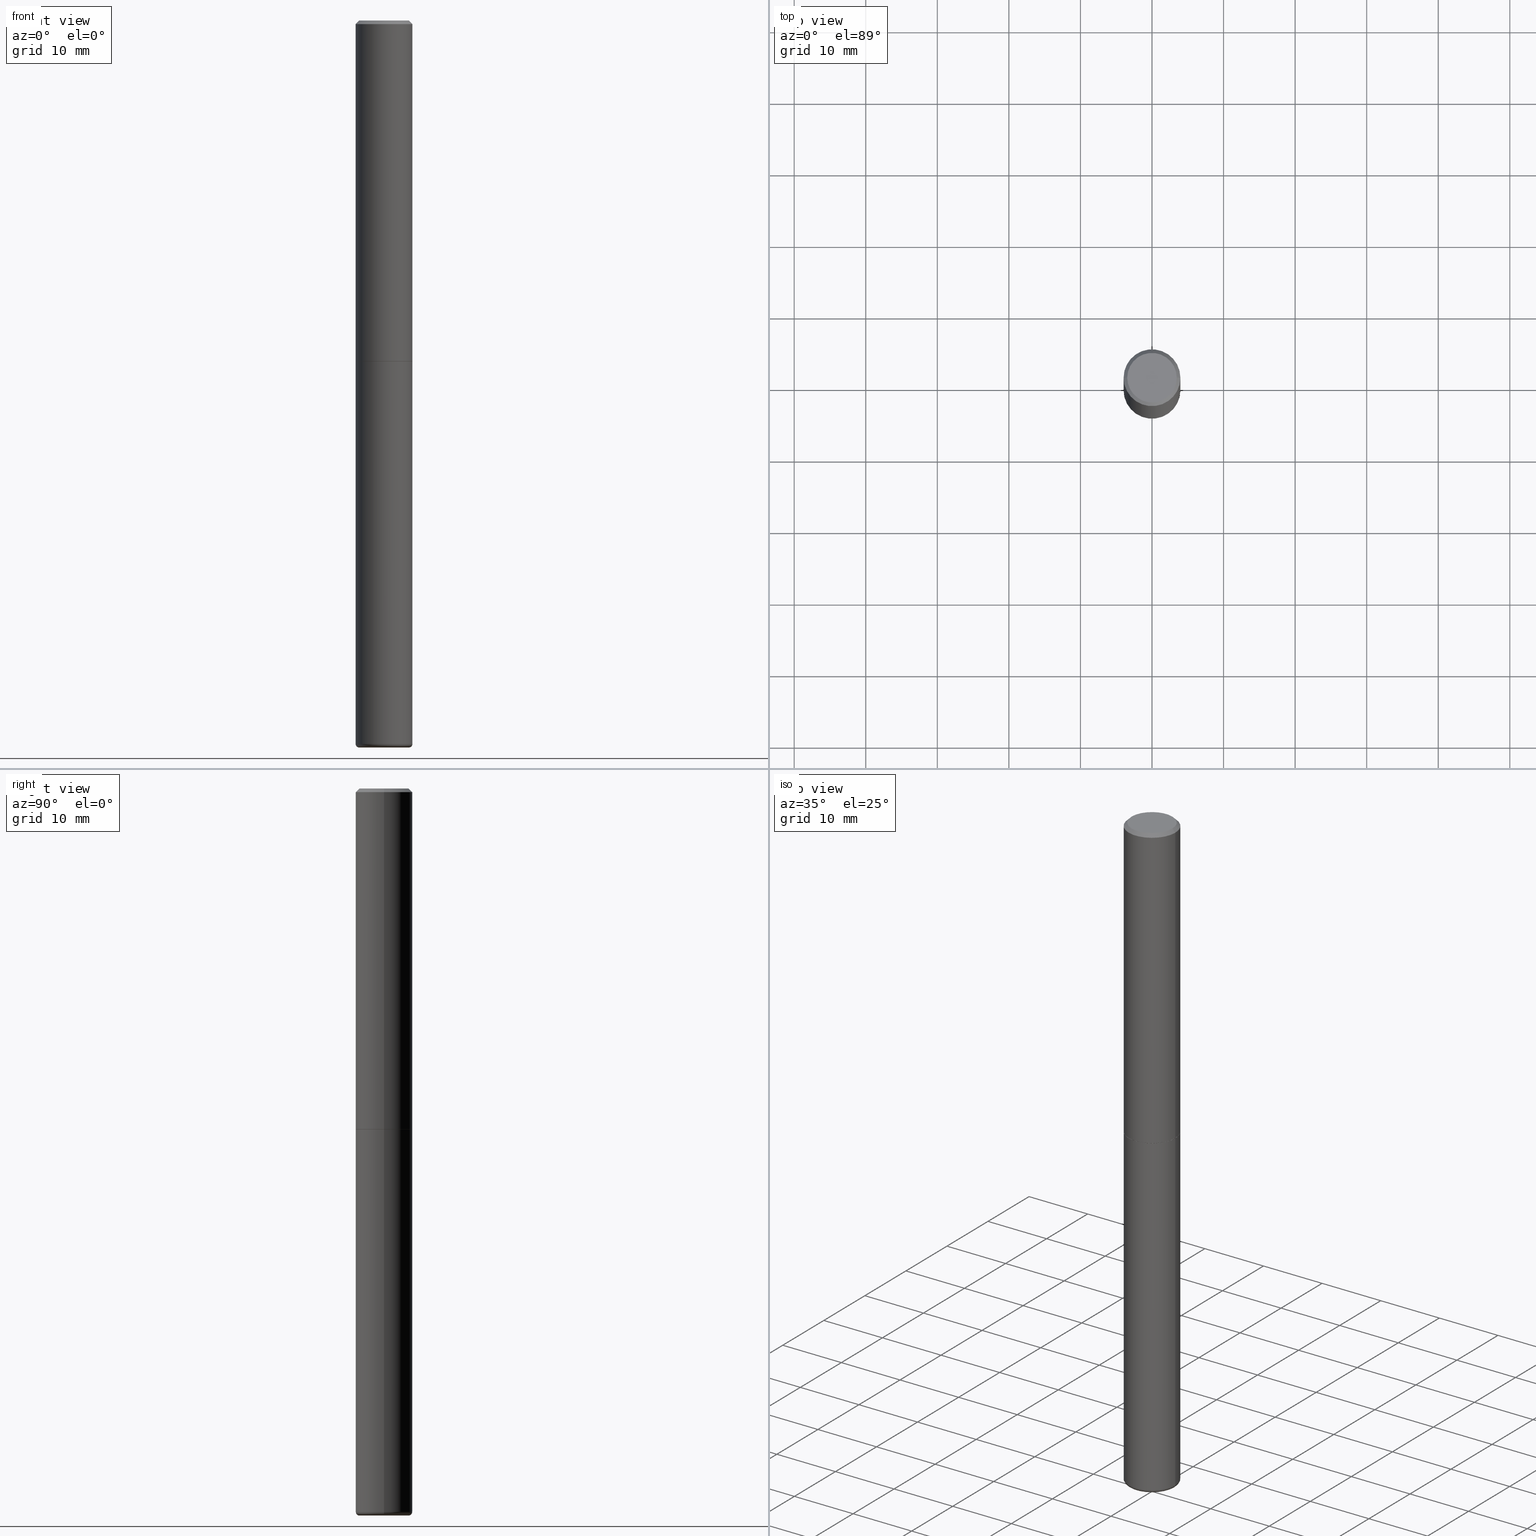
[diagram: canonical four-view strip — front | top / right | iso, engineering-drawing reading convention]
A machine part, canonical four-view strip (front | top / right | iso — engineering-drawing reading convention). The complete STEP part file that produces these views, byte-faithful:
ISO-10303-21;
HEADER;
FILE_DESCRIPTION (( 'STEP AP203' ),
    '1' );
FILE_NAME ('33460.STEP',
    '2022-11-02T20:12:44',
    ( '' ),
    ( '' ),
    'SwSTEP 2.0',
    'SolidWorks 2022',
    '' );
FILE_SCHEMA (( 'CONFIG_CONTROL_DESIGN' ));
ENDSEC;

DATA;
#1 = ORIENTED_EDGE ( 'NONE', *, *, #339, .T. ) ;
#2 = EDGE_CURVE ( 'NONE', #200, #234, #281, .T. ) ;
#3 = CALENDAR_DATE ( 2022, 2, 11 ) ;
#4 = ORIENTED_EDGE ( 'NONE', *, *, #436, .T. ) ;
#5 = CARTESIAN_POINT ( 'NONE',  ( 4.585254011597131679E-29, -6.546527510330899496E-15, -1.875000000000000444 ) ) ;
#6 = ORIENTED_EDGE ( 'NONE', *, *, #138, .T. ) ;
#7 = DIRECTION ( 'NONE',  ( -2.445468806185136597E-29, 3.491481338843145583E-15, 1.000000000000000000 ) ) ;
#8 = DIRECTION ( 'NONE',  ( 1.000000000000000000, -6.982962677686262766E-15, 4.883557194083111780E-29 ) ) ;
#9 = EDGE_LOOP ( 'NONE', ( #261, #370, #79 ) ) ;
#10 = CC_DESIGN_DATE_AND_TIME_ASSIGNMENT ( #159, #49, ( #280 ) ) ;
#11 = CIRCLE ( 'NONE', #388, 0.1360754692900327800 ) ;
#12 = ORIENTED_EDGE ( 'NONE', *, *, #64, .T. ) ;
#13 = DIRECTION ( 'NONE',  ( 1.000000000000000000, -6.982962677686269077E-15, 0.000000000000000000 ) ) ;
#14 = DIRECTION ( 'NONE',  ( 0.000000000000000000, 0.000000000000000000, 1.000000000000000000 ) ) ;
#15 = CC_DESIGN_PERSON_AND_ORGANIZATION_ASSIGNMENT ( #221, #107, ( #381 ) ) ;
#16 = UNCERTAINTY_MEASURE_WITH_UNIT (LENGTH_MEASURE( 1.000000000000000082E-05 ), #285, 'distance_accuracy_value', 'NONE');
#17 = FACE_OUTER_BOUND ( 'NONE', #345, .T. ) ;
#18 = DIRECTION ( 'NONE',  ( -0.9993908270190957621, 6.856857904024562781E-15, -0.03489949670249930386 ) ) ;
#19 = CIRCLE ( 'NONE', #227, 0.1552499999999999991 ) ;
#20 = DIRECTION ( 'NONE',  ( 1.000000000000000000, 0.000000000000000000, 0.000000000000000000 ) ) ;
#21 = COORDINATED_UNIVERSAL_TIME_OFFSET ( 5, 0, .BEHIND. ) ;
#22 = EDGE_CURVE ( 'NONE', #275, #45, #401, .T. ) ;
#23 = DIRECTION ( 'NONE',  ( -1.000000000000000000, 6.982962677686259611E-15, 0.000000000000000000 ) ) ;
#24 = PERSON_AND_ORGANIZATION_ROLE ( 'classification_officer' ) ;
#25 = DIRECTION ( 'NONE',  ( 1.000000000000000000, -6.982962677686292743E-15, 0.000000000000000000 ) ) ;
#26 = DIRECTION ( 'NONE',  ( 1.000000000000000000, -6.982962677686266711E-15, 4.876176775795935793E-29 ) ) ;
#27 = ADVANCED_BREP_SHAPE_REPRESENTATION ( '33460', ( #169, #185, #440 ), #189 ) ;
#28 = CARTESIAN_POINT ( 'NONE',  ( -0.1562500000000000000, -2.196209803259297437E-15, -1.874000000000000332 ) ) ;
#29 = CARTESIAN_POINT ( 'NONE',  ( 9.781519558921750224E-29, -1.396541755884454842E-14, -3.999854561293974431 ) ) ;
#30 = CARTESIAN_POINT ( 'NONE',  ( -0.1562499999999994726, 1.021258291611612128E-15, -0.02000000000000008021 ) ) ;
#31 = ORIENTED_EDGE ( 'NONE', *, *, #2, .F. ) ;
#32 = CIRCLE ( 'NONE', #483, 0.1562500000000000000 ) ;
#33 = DIRECTION ( 'NONE',  ( 7.105427357601001859E-15, 1.000000000000000000, -3.491481338843145583E-15 ) ) ;
#34 = DIRECTION ( 'NONE',  ( -2.445468806185136597E-29, 3.491481338843145583E-15, 1.000000000000000000 ) ) ;
#35 = ORIENTED_EDGE ( 'NONE', *, *, #187, .F. ) ;
#36 = COORDINATED_UNIVERSAL_TIME_OFFSET ( 5, 0, .BEHIND. ) ;
#37 = CARTESIAN_POINT ( 'NONE',  ( -0.1194098442900327905, -1.313158307281892239E-14, -3.999854561293974431 ) ) ;
#38 = ORIENTED_EDGE ( 'NONE', *, *, #328, .T. ) ;
#39 = CONICAL_SURFACE ( 'NONE', #136, 0.1552499999999999991, 0.7853981633974141952 ) ;
#40 = PERSON_AND_ORGANIZATION ( #85, #294 ) ;
#41 = CONICAL_SURFACE ( 'NONE', #211, 0.1552499999999999991, 0.7853981633974141952 ) ;
#42 = DIRECTION ( 'NONE',  ( -2.445468806185136877E-29, 3.491481338843145188E-15, 1.000000000000000000 ) ) ;
#43 = DIRECTION ( 'NONE',  ( 2.445468806185136597E-29, -3.491481338843145583E-15, -1.000000000000000000 ) ) ;
#44 = EDGE_LOOP ( 'NONE', ( #87, #412, #426, #202 ) ) ;
#45 = VERTEX_POINT ( 'NONE', #120 ) ;
#46 = FACE_OUTER_BOUND ( 'NONE', #125, .T. ) ;
#47 = ORIENTED_EDGE ( 'NONE', *, *, #307, .T. ) ;
#48 = VERTEX_POINT ( 'NONE', #319 ) ;
#49 = DATE_TIME_ROLE ( 'classification_date' ) ;
#50 = LOCAL_TIME ( 16, 12, 44.00000000000000000, #21 ) ;
#51 = CARTESIAN_POINT ( 'NONE',  ( 0.000000000000000000, 0.000000000000000000, 0.000000000000000000 ) ) ;
#52 = CALENDAR_DATE ( 2022, 2, 11 ) ;
#53 = ORIENTED_EDGE ( 'NONE', *, *, #80, .F. ) ;
#54 = ORIENTED_EDGE ( 'NONE', *, *, #333, .F. ) ;
#55 = APPROVAL ( #295, 'UNSPECIFIED' ) ;
#56 = DIRECTION ( 'NONE',  ( 1.000000000000000000, -6.982962677686265133E-15, 0.000000000000000000 ) ) ;
#57 = FACE_OUTER_BOUND ( 'NONE', #70, .T. ) ;
#58 = DIRECTION ( 'NONE',  ( 1.000000000000000000, -6.982962677686269077E-15, 0.000000000000000000 ) ) ;
#59 = CC_DESIGN_APPROVAL ( #253, ( #300 ) ) ;
#60 = CARTESIAN_POINT ( 'NONE',  ( 9.781875224740546387E-29, -1.396592535537258233E-14, -4.000000000000000000 ) ) ;
#61 = DIRECTION ( 'NONE',  ( 2.445468806185136597E-29, -3.491481338843145583E-15, -1.000000000000000000 ) ) ;
#62 = DIRECTION ( 'NONE',  ( -2.445468806185136597E-29, 3.491481338843145583E-15, 1.000000000000000000 ) ) ;
#63 = CONICAL_SURFACE ( 'NONE', #150, 0.1194098442900327905, 1.535889741755011695 ) ;
#64 = EDGE_CURVE ( 'NONE', #230, #450, #205, .T. ) ;
#65 = DIRECTION ( 'NONE',  ( 0.9993908270190957621, -6.978169709227536755E-15, -0.03489949670249930386 ) ) ;
#66 = DIRECTION ( 'NONE',  ( -2.445468806185136597E-29, 3.491481338843145583E-15, 1.000000000000000000 ) ) ;
#67 = EDGE_CURVE ( 'NONE', #419, #455, #242, .T. ) ;
#68 = CARTESIAN_POINT ( 'NONE',  ( 4.890937612370293302E-31, -6.982962677686318726E-17, -0.02000000000000008021 ) ) ;
#69 = CIRCLE ( 'NONE', #210, 0.1562500000000000000 ) ;
#70 = EDGE_LOOP ( 'NONE', ( #1, #112, #96, #344 ) ) ;
#71 = AXIS2_PLACEMENT_3D ( 'NONE', #95, #386, #8 ) ;
#72 = CARTESIAN_POINT ( 'NONE',  ( 9.732967710936019417E-29, -1.389609838749393704E-14, -3.980000761538716514 ) ) ;
#73 = DIRECTION ( 'NONE',  ( -2.445468806185136597E-29, 3.491481338843145583E-15, 1.000000000000000000 ) ) ;
#74 = ORIENTED_EDGE ( 'NONE', *, *, #457, .T. ) ;
#75 = CARTESIAN_POINT ( 'NONE',  ( 0.1194098442900327905, -1.478462855651052827E-14, -3.999854561293974431 ) ) ;
#76 = ORIENTED_EDGE ( 'NONE', *, *, #394, .T. ) ;
#77 = FACE_OUTER_BOUND ( 'NONE', #161, .T. ) ;
#78 = ORIENTED_EDGE ( 'NONE', *, *, #394, .F. ) ;
#79 = ORIENTED_EDGE ( 'NONE', *, *, #138, .F. ) ;
#80 = EDGE_CURVE ( 'NONE', #245, #456, #302, .T. ) ;
#81 = AXIS2_PLACEMENT_3D ( 'NONE', #128, #246, #56 ) ;
#82 = AXIS2_PLACEMENT_3D ( 'NONE', #392, #73, #290 ) ;
#83 = APPLICATION_CONTEXT ( 'configuration controlled 3d designs of mechanical parts and assemblies' ) ;
#84 = EDGE_LOOP ( 'NONE', ( #78, #378, #172, #86 ) ) ;
#85 = PERSON ( 'UNSPECIFIED', 'UNSPECIFIED', 'UNSPECIFIED', ('UNSPECIFIED'), ('UNSPECIFIED'), ('UNSPECIFIED') ) ;
#86 = ORIENTED_EDGE ( 'NONE', *, *, #156, .F. ) ;
#87 = ORIENTED_EDGE ( 'NONE', *, *, #80, .T. ) ;
#88 = VECTOR ( 'NONE', #130, 39.37007874015748143 ) ;
#89 = CC_DESIGN_SECURITY_CLASSIFICATION ( #280, ( #381 ) ) ;
#90 = EDGE_LOOP ( 'NONE', ( #198, #54 ) ) ;
#91 = ORIENTED_EDGE ( 'NONE', *, *, #105, .T. ) ;
#92 = DIRECTION ( 'NONE',  ( -2.445468806185136597E-29, 3.491481338843145583E-15, 1.000000000000000000 ) ) ;
#93 = EDGE_CURVE ( 'NONE', #234, #247, #279, .T. ) ;
#94 = FACE_OUTER_BOUND ( 'NONE', #151, .T. ) ;
#95 = CARTESIAN_POINT ( 'NONE',  ( 9.732967710936019417E-29, -1.389609838749393704E-14, -3.980000761538716514 ) ) ;
#96 = ORIENTED_EDGE ( 'NONE', *, *, #64, .F. ) ;
#97 = FACE_OUTER_BOUND ( 'NONE', #262, .T. ) ;
#98 = FACE_OUTER_BOUND ( 'NONE', #84, .T. ) ;
#99 = CIRCLE ( 'NONE', #434, 0.1194098442900327905 ) ;
#100 = DIRECTION ( 'NONE',  ( -0.9999619230641711987, 6.952228252019158991E-15, -0.008726535498377227182 ) ) ;
#101 =( NAMED_UNIT ( * ) PLANE_ANGLE_UNIT ( ) SI_UNIT ( $, .RADIAN. ) );
#102 = DATE_AND_TIME ( #132, #50 ) ;
#103 = LINE ( 'NONE', #470, #88 ) ;
#104 = APPROVAL_STATUS ( 'not_yet_approved' ) ;
#105 = EDGE_CURVE ( 'NONE', #245, #164, #254, .T. ) ;
#106 = DIRECTION ( 'NONE',  ( 1.000000000000000000, -6.982962677686269077E-15, 0.000000000000000000 ) ) ;
#107 = PERSON_AND_ORGANIZATION_ROLE ( 'design_supplier' ) ;
#108 = AXIS2_PLACEMENT_3D ( 'NONE', #474, #62, #26 ) ;
#109 = DIRECTION ( 'NONE',  ( -2.445468806185136597E-29, 3.491481338843145583E-15, 1.000000000000000000 ) ) ;
#110 = EDGE_LOOP ( 'NONE', ( #163, #190, #53 ) ) ;
#111 = CARTESIAN_POINT ( 'NONE',  ( 9.771322238536373205E-29, -1.395085848790416375E-14, -3.995684677646476946 ) ) ;
#112 = ORIENTED_EDGE ( 'NONE', *, *, #287, .T. ) ;
#113 = EDGE_CURVE ( 'NONE', #48, #164, #11, .T. ) ;
#114 = CARTESIAN_POINT ( 'NONE',  ( 0.1362499999999993994, -1.038262645562514180E-15, 6.957025900226667049E-30 ) ) ;
#115 = DIRECTION ( 'NONE',  ( 2.445468806185136597E-29, -3.491481338843145583E-15, -1.000000000000000000 ) ) ;
#116 = LOCAL_TIME ( 16, 12, 44.00000000000000000, #322 ) ;
#117 = DIRECTION ( 'NONE',  ( 1.000000000000000000, -6.982962677686269077E-15, 0.000000000000000000 ) ) ;
#118 = VECTOR ( 'NONE', #65, 39.37007874015748143 ) ;
#119 = AXIS2_PLACEMENT_3D ( 'NONE', #405, #479, #357 ) ;
#120 = CARTESIAN_POINT ( 'NONE',  ( 0.1562500000000000000, -1.498718630588241542E-14, -3.980000761538716514 ) ) ;
#121 = PLANE ( 'NONE',  #303 ) ;
#122 = FACE_OUTER_BOUND ( 'NONE', #463, .T. ) ;
#123 = AXIS2_PLACEMENT_3D ( 'NONE', #407, #395, #361 ) ;
#124 = MECHANICAL_CONTEXT ( 'NONE', #316, 'mechanical' ) ;
#125 = EDGE_LOOP ( 'NONE', ( #382, #6, #91, #308 ) ) ;
#126 = CARTESIAN_POINT ( 'NONE',  ( 0.1562499999999994726, -1.141782438928661161E-15, -0.02000000000000008021 ) ) ;
#127 = CARTESIAN_POINT ( 'NONE',  ( 9.732967710936019417E-29, -1.389609838749393704E-14, -3.980000761538716514 ) ) ;
#128 = CARTESIAN_POINT ( 'NONE',  ( 4.890937612370293302E-31, -6.982962677686318726E-17, -0.02000000000000008021 ) ) ;
#129 = CC_DESIGN_PERSON_AND_ORGANIZATION_ASSIGNMENT ( #458, #277, ( #148 ) ) ;
#130 = DIRECTION ( 'NONE',  ( -2.445468806185136877E-29, 3.491481338843145188E-15, 1.000000000000000000 ) ) ;
#131 = DIRECTION ( 'NONE',  ( -2.438088387897960049E-29, 3.491481338843145188E-15, 1.000000000000000000 ) ) ;
#132 = CALENDAR_DATE ( 2022, 2, 11 ) ;
#133 = DIRECTION ( 'NONE',  ( 2.438088387897960049E-29, -3.491481338843145188E-15, -1.000000000000000000 ) ) ;
#134 = LENGTH_MEASURE_WITH_UNIT ( LENGTH_MEASURE( 0.02539999999999999897 ), #397 );
#135 = FACE_OUTER_BOUND ( 'NONE', #415, .T. ) ;
#136 = AXIS2_PLACEMENT_3D ( 'NONE', #411, #179, #332 ) ;
#137 = DIRECTION ( 'NONE',  ( -2.445468806185136597E-29, 3.491481338843145583E-15, 1.000000000000000000 ) ) ;
#138 = EDGE_CURVE ( 'NONE', #456, #245, #99, .T. ) ;
#139 = DATE_AND_TIME ( #482, #304 ) ;
#140 = DIRECTION ( 'NONE',  ( -1.000000000000000000, 6.982962677686259611E-15, 0.000000000000000000 ) ) ;
#141 = CARTESIAN_POINT ( 'NONE',  ( 4.582808542790946637E-29, -6.543036028992055700E-15, -1.874000000000000332 ) ) ;
#142 = COORDINATED_UNIVERSAL_TIME_OFFSET ( 5, 0, .BEHIND. ) ;
#143 = CIRCLE ( 'NONE', #82, 0.1362499999999993994 ) ;
#144 = PERSON_AND_ORGANIZATION_ROLE ( 'creator' ) ;
#145 = LINE ( 'NONE', #263, #177 ) ;
#146 = EDGE_CURVE ( 'NONE', #164, #48, #311, .T. ) ;
#147 = DIRECTION ( 'NONE',  ( -2.445468806185136597E-29, 3.491481338843145583E-15, 1.000000000000000000 ) ) ;
#148 = PRODUCT ( '33460', '33460', '', ( #124 ) ) ;
#149 = ORIENTED_EDGE ( 'NONE', *, *, #22, .F. ) ;
#150 = AXIS2_PLACEMENT_3D ( 'NONE', #329, #398, #23 ) ;
#151 = EDGE_LOOP ( 'NONE', ( #241, #157, #38, #239 ) ) ;
#152 = ADVANCED_FACE ( 'NONE', ( #327 ), #63, .F. ) ;
#153 = CARTESIAN_POINT ( 'NONE',  ( 0.1552499999999999991, -7.630632466041692655E-15, -1.875000000000000444 ) ) ;
#154 = CARTESIAN_POINT ( 'NONE',  ( 9.781875224740546387E-29, -1.396592535537258233E-14, -4.000000000000000000 ) ) ;
#155 = ORIENTED_EDGE ( 'NONE', *, *, #436, .F. ) ;
#156 = EDGE_CURVE ( 'NONE', #455, #419, #354, .T. ) ;
#157 = ORIENTED_EDGE ( 'NONE', *, *, #22, .T. ) ;
#158 = AXIS2_PLACEMENT_3D ( 'NONE', #216, #33, #282 ) ;
#159 = DATE_AND_TIME ( #3, #178 ) ;
#160 = CONICAL_SURFACE ( 'NONE', #218, 0.1360754692900327800, 1.562069680534921678 ) ;
#161 = EDGE_LOOP ( 'NONE', ( #12, #305 ) ) ;
#162 = CC_DESIGN_PERSON_AND_ORGANIZATION_ASSIGNMENT ( #255, #144, ( #300 ) ) ;
#163 = ORIENTED_EDGE ( 'NONE', *, *, #387, .F. ) ;
#164 = VERTEX_POINT ( 'NONE', #184 ) ;
#165 = DIRECTION ( 'NONE',  ( 1.000000000000000000, -6.982962677686265922E-15, 4.876176775795935793E-29 ) ) ;
#166 = CARTESIAN_POINT ( 'NONE',  ( 4.585254011597131679E-29, -6.546527510330899496E-15, -1.875000000000000444 ) ) ;
#167 = VECTOR ( 'NONE', #404, 39.37007874015748143 ) ;
#168 = ADVANCED_FACE ( 'NONE', ( #17 ), #121, .F. ) ;
#169 = MANIFOLD_SOLID_BREP ( 'Body-Move/Copy2[1]', #330 ) ;
#170 = DIRECTION ( 'NONE',  ( 2.445468806185136597E-29, -3.491481338843145583E-15, -1.000000000000000000 ) ) ;
#171 = DIRECTION ( 'NONE',  ( -2.445468806185136597E-29, 3.491481338843145583E-15, 1.000000000000000000 ) ) ;
#172 = ORIENTED_EDGE ( 'NONE', *, *, #492, .T. ) ;
#173 = LINE ( 'NONE', #396, #371 ) ;
#174 = DIRECTION ( 'NONE',  ( -2.445468806185136597E-29, 3.491481338843145583E-15, 1.000000000000000000 ) ) ;
#175 = CARTESIAN_POINT ( 'NONE',  ( 9.781875224740546387E-29, -1.396592535537258233E-14, -4.000000000000000000 ) ) ;
#176 = CARTESIAN_POINT ( 'NONE',  ( 0.1562499999999997224, -1.091087918388477399E-15, 7.619026212181136364E-30 ) ) ;
#177 = VECTOR ( 'NONE', #410, 39.37007874015748143 ) ;
#178 = LOCAL_TIME ( 16, 12, 44.00000000000000000, #36 ) ;
#179 = DIRECTION ( 'NONE',  ( -2.445468806185136597E-29, 3.491481338843145583E-15, 1.000000000000000000 ) ) ;
#180 = DIRECTION ( 'NONE',  ( -6.982962677686266711E-15, -1.000000000000000000, 3.491481338843145583E-15 ) ) ;
#181 = CARTESIAN_POINT ( 'NONE',  ( -0.1552499999999999991, -5.438111458715121561E-15, -1.875000000000000444 ) ) ;
#182 = ADVANCED_FACE ( 'NONE', ( #122 ), #422, .T. ) ;
#183 = LINE ( 'NONE', #75, #118 ) ;
#184 = CARTESIAN_POINT ( 'NONE',  ( -0.1360754692900327800, -1.289246317802478605E-14, -4.000000000000000000 ) ) ;
#185 = MANIFOLD_SOLID_BREP ( 'Body-Move/Copy2[2]', #447 ) ;
#186 = CARTESIAN_POINT ( 'NONE',  ( -0.1562499999999994726, 1.021258291611612128E-15, -0.02000000000000008021 ) ) ;
#187 = EDGE_CURVE ( 'NONE', #265, #419, #318, .T. ) ;
#188 = CONICAL_SURFACE ( 'NONE', #453, 0.1562499999999994726, 0.7853981633974477239 ) ;
#189 =( GEOMETRIC_REPRESENTATION_CONTEXT ( 3 ) GLOBAL_UNCERTAINTY_ASSIGNED_CONTEXT ( ( #16 ) ) GLOBAL_UNIT_ASSIGNED_CONTEXT ( ( #285, #101, #219 ) ) REPRESENTATION_CONTEXT ( 'NONE', 'WORKASPACE' ) );
#190 = ORIENTED_EDGE ( 'NONE', *, *, #309, .T. ) ;
#191 = PLANE ( 'NONE',  #288 ) ;
#192 = ORIENTED_EDGE ( 'NONE', *, *, #237, .T. ) ;
#193 = DATE_AND_TIME ( #52, #116 ) ;
#194 = CARTESIAN_POINT ( 'NONE',  ( 0.1562500000000000000, -7.637615428719378669E-15, -1.875000000000000444 ) ) ;
#195 = EDGE_CURVE ( 'NONE', #265, #384, #143, .T. ) ;
#196 = LINE ( 'NONE', #342, #256 ) ;
#197 = TOROIDAL_SURFACE ( 'NONE', #343, 0.1362500000000001765, 0.01999999999999985470 ) ;
#198 = ORIENTED_EDGE ( 'NONE', *, *, #457, .F. ) ;
#199 = ADVANCED_FACE ( 'NONE', ( #467 ), #197, .T. ) ;
#200 = VERTEX_POINT ( 'NONE', #181 ) ;
#201 = ADVANCED_FACE ( 'NONE', ( #57 ), #403, .T. ) ;
#202 = ORIENTED_EDGE ( 'NONE', *, *, #105, .F. ) ;
#203 = APPROVAL_DATE_TIME ( #139, #55 ) ;
#204 = ORIENTED_EDGE ( 'NONE', *, *, #187, .T. ) ;
#205 = CIRCLE ( 'NONE', #476, 0.1562500000000000000 ) ;
#206 = ORIENTED_EDGE ( 'NONE', *, *, #156, .T. ) ;
#207 = DIRECTION ( 'NONE',  ( 1.000000000000000000, -6.982962677686262766E-15, 0.000000000000000000 ) ) ;
#208 = CARTESIAN_POINT ( 'NONE',  ( 9.781519558921750224E-29, -1.396541755884454842E-14, -3.999854561293974431 ) ) ;
#209 = CC_DESIGN_DATE_AND_TIME_ASSIGNMENT ( #448, #341, ( #300 ) ) ;
#210 = AXIS2_PLACEMENT_3D ( 'NONE', #301, #445, #117 ) ;
#211 = AXIS2_PLACEMENT_3D ( 'NONE', #166, #321, #465 ) ;
#212 = CARTESIAN_POINT ( 'NONE',  ( 4.582808542790946637E-29, -6.543036028992055700E-15, -1.874000000000000332 ) ) ;
#213 = CARTESIAN_POINT ( 'NONE',  ( 4.890937612370293302E-31, -6.982962677686318726E-17, -0.02000000000000008021 ) ) ;
#214 = DIRECTION ( 'NONE',  ( -2.445468806185136877E-29, 3.491481338843145188E-15, 1.000000000000000000 ) ) ;
#215 = DIRECTION ( 'NONE',  ( 1.000000000000000000, -6.982962677686269077E-15, 0.000000000000000000 ) ) ;
#216 = CARTESIAN_POINT ( 'NONE',  ( -0.1362500000000001765, -1.292798391002079908E-14, -3.980000761538716514 ) ) ;
#217 = APPROVAL_ROLE ( '' ) ;
#218 = AXIS2_PLACEMENT_3D ( 'NONE', #154, #238, #271 ) ;
#219 =( NAMED_UNIT ( * ) SI_UNIT ( $, .STERADIAN. ) SOLID_ANGLE_UNIT ( ) );
#220 = ADVANCED_FACE ( 'NONE', ( #77 ), #191, .F. ) ;
#221 = PERSON_AND_ORGANIZATION ( #85, #294 ) ;
#222 = CC_DESIGN_PERSON_AND_ORGANIZATION_ASSIGNMENT ( #367, #24, ( #280 ) ) ;
#223 = DIRECTION ( 'NONE',  ( -1.000000000000000000, 6.982962677686269077E-15, 0.000000000000000000 ) ) ;
#224 = APPROVAL_DATE_TIME ( #193, #253 ) ;
#225 = CARTESIAN_POINT ( 'NONE',  ( -0.1362499999999993994, 9.863434782231808736E-16, -6.775751096333110456E-30 ) ) ;
#226 = VECTOR ( 'NONE', #306, 39.37007874015748854 ) ;
#227 = AXIS2_PLACEMENT_3D ( 'NONE', #376, #34, #336 ) ;
#228 = AXIS2_PLACEMENT_3D ( 'NONE', #270, #170, #140 ) ;
#229 = ORIENTED_EDGE ( 'NONE', *, *, #473, .T. ) ;
#230 = VERTEX_POINT ( 'NONE', #194 ) ;
#231 = ORIENTED_EDGE ( 'NONE', *, *, #237, .F. ) ;
#232 = LINE ( 'NONE', #153, #226 ) ;
#233 = ORIENTED_EDGE ( 'NONE', *, *, #379, .F. ) ;
#234 = VERTEX_POINT ( 'NONE', #28 ) ;
#235 = CIRCLE ( 'NONE', #158, 0.01999999999999983735 ) ;
#236 = VERTEX_POINT ( 'NONE', #111 ) ;
#237 = EDGE_CURVE ( 'NONE', #384, #455, #293, .T. ) ;
#238 = DIRECTION ( 'NONE',  ( 2.445468806185136597E-29, -3.491481338843145583E-15, -1.000000000000000000 ) ) ;
#239 = ORIENTED_EDGE ( 'NONE', *, *, #248, .F. ) ;
#240 = DIRECTION ( 'NONE',  ( 0.7071067811865471286, -7.319954787623254468E-15, -0.7071067811865479058 ) ) ;
#241 = ORIENTED_EDGE ( 'NONE', *, *, #287, .F. ) ;
#242 = CIRCLE ( 'NONE', #81, 0.1562499999999994726 ) ;
#243 = AXIS2_PLACEMENT_3D ( 'NONE', #208, #352, #431 ) ;
#244 = CARTESIAN_POINT ( 'NONE',  ( 0.000000000000000000, 0.000000000000000000, 0.000000000000000000 ) ) ;
#245 = VERTEX_POINT ( 'NONE', #37 ) ;
#246 = DIRECTION ( 'NONE',  ( -2.445468806185136597E-29, 3.491481338843145583E-15, 1.000000000000000000 ) ) ;
#247 = VERTEX_POINT ( 'NONE', #449 ) ;
#248 = EDGE_CURVE ( 'NONE', #450, #230, #69, .T. ) ;
#249 = AXIS2_PLACEMENT_3D ( 'NONE', #141, #487, #413 ) ;
#250 = APPROVAL_PERSON_ORGANIZATION ( #40, #55, #268 ) ;
#251 = CARTESIAN_POINT ( 'NONE',  ( 0.000000000000000000, 0.000000000000000000, 0.000000000000000000 ) ) ;
#252 = APPROVAL_ROLE ( '' ) ;
#253 = APPROVAL ( #104, 'UNSPECIFIED' ) ;
#254 = LINE ( 'NONE', #480, #477 ) ;
#255 = PERSON_AND_ORGANIZATION ( #85, #294 ) ;
#256 = VECTOR ( 'NONE', #42, 39.37007874015748143 ) ;
#257 = DIRECTION ( 'NONE',  ( 1.000000000000000000, -6.982962677686265133E-15, 0.000000000000000000 ) ) ;
#258 = SECURITY_CLASSIFICATION_LEVEL ( 'unclassified' ) ;
#259 = SHAPE_DEFINITION_REPRESENTATION ( #297, #27 ) ;
#260 = DIRECTION ( 'NONE',  ( 2.438088387897960049E-29, -3.491481338843145188E-15, -1.000000000000000000 ) ) ;
#261 = ORIENTED_EDGE ( 'NONE', *, *, #309, .F. ) ;
#262 = EDGE_LOOP ( 'NONE', ( #350, #204, #408, #231 ) ) ;
#263 = CARTESIAN_POINT ( 'NONE',  ( -0.1562500000000000000, 1.110223024625156540E-15, -7.685836078523291160E-30 ) ) ;
#264 = CC_DESIGN_APPROVAL ( #468, ( #280 ) ) ;
#265 = VERTEX_POINT ( 'NONE', #114 ) ;
#266 = PRODUCT_RELATED_PRODUCT_CATEGORY ( 'detail', '', ( #148 ) ) ;
#267 = CALENDAR_DATE ( 2022, 2, 11 ) ;
#268 = APPROVAL_ROLE ( '' ) ;
#269 = VERTEX_POINT ( 'NONE', #485 ) ;
#270 = CARTESIAN_POINT ( 'NONE',  ( 9.781519558921750224E-29, -1.396541755884454842E-14, -3.999854561293974431 ) ) ;
#271 = DIRECTION ( 'NONE',  ( -1.000000000000000000, 6.982962677686269077E-15, 0.000000000000000000 ) ) ;
#272 = CONICAL_SURFACE ( 'NONE', #462, 0.1562499999999994726, 0.7853981633974477239 ) ;
#273 = CONICAL_SURFACE ( 'NONE', #228, 0.1194098442900327905, 1.535889741755011695 ) ;
#274 = DIRECTION ( 'NONE',  ( -1.000000000000000000, 6.982962677686265922E-15, -4.876176775795935793E-29 ) ) ;
#275 = VERTEX_POINT ( 'NONE', #490 ) ;
#276 = ORIENTED_EDGE ( 'NONE', *, *, #323, .F. ) ;
#277 = PERSON_AND_ORGANIZATION_ROLE ( 'design_owner' ) ;
#278 = DIRECTION ( 'NONE',  ( -0.7071067811865232589, 7.493145998870265808E-15, 0.7071067811865715536 ) ) ;
#279 = CIRCLE ( 'NONE', #363, 0.1562500000000000000 ) ;
#280 = SECURITY_CLASSIFICATION ( '', '', #258 ) ;
#281 = LINE ( 'NONE', #393, #409 ) ;
#282 = DIRECTION ( 'NONE',  ( -1.000000000000000000, 7.105427357600983715E-15, 0.000000000000000000 ) ) ;
#283 = DIRECTION ( 'NONE',  ( 1.000000000000000000, -6.982962677686266711E-15, 4.876176775795936353E-29 ) ) ;
#284 = DIRECTION ( 'NONE',  ( -2.445468806185136597E-29, 3.491481338843145583E-15, 1.000000000000000000 ) ) ;
#285 =( CONVERSION_BASED_UNIT ( 'INCH', #134 ) LENGTH_UNIT ( ) NAMED_UNIT ( #390 ) );
#286 = FACE_OUTER_BOUND ( 'NONE', #44, .T. ) ;
#287 = EDGE_CURVE ( 'NONE', #275, #450, #145, .T. ) ;
#288 = AXIS2_PLACEMENT_3D ( 'NONE', #337, #260, #416 ) ;
#289 = CARTESIAN_POINT ( 'NONE',  ( 9.514286648347494217E-16, 0.1362499999999993994, -4.757143324173764858E-16 ) ) ;
#290 = DIRECTION ( 'NONE',  ( 1.000000000000000000, -6.982962677686266711E-15, 4.876176775795935793E-29 ) ) ;
#291 = AXIS2_PLACEMENT_3D ( 'NONE', #314, #425, #207 ) ;
#292 = AXIS2_PLACEMENT_3D ( 'NONE', #360, #109, #257 ) ;
#293 = LINE ( 'NONE', #186, #167 ) ;
#294 = ORGANIZATION ( 'UNSPECIFIED', 'UNSPECIFIED', '' ) ;
#295 = APPROVAL_STATUS ( 'not_yet_approved' ) ;
#296 = EDGE_LOOP ( 'NONE', ( #233, #460, #229, #149 ) ) ;
#297 = PRODUCT_DEFINITION_SHAPE ( 'NONE', 'NONE',  #300 ) ;
#298 = DIRECTION ( 'NONE',  ( -1.000000000000000000, 6.982962677686265922E-15, 0.000000000000000000 ) ) ;
#299 = ORIENTED_EDGE ( 'NONE', *, *, #339, .F. ) ;
#300 = PRODUCT_DEFINITION ( 'UNKNOWN', '', #381, #362 ) ;
#301 = CARTESIAN_POINT ( 'NONE',  ( 4.585254011597131679E-29, -6.546527510330899496E-15, -1.875000000000000444 ) ) ;
#302 = CIRCLE ( 'NONE', #243, 0.1194098442900327905 ) ;
#303 = AXIS2_PLACEMENT_3D ( 'NONE', #289, #133, #274 ) ;
#304 = LOCAL_TIME ( 16, 12, 44.00000000000000000, #142 ) ;
#305 = ORIENTED_EDGE ( 'NONE', *, *, #248, .T. ) ;
#306 = DIRECTION ( 'NONE',  ( 0.7071067811865232589, -2.468850131082003836E-15, 0.7071067811865715536 ) ) ;
#307 = EDGE_CURVE ( 'NONE', #247, #234, #334, .T. ) ;
#308 = ORIENTED_EDGE ( 'NONE', *, *, #113, .F. ) ;
#309 = EDGE_CURVE ( 'NONE', #236, #456, #183, .T. ) ;
#310 = ORIENTED_EDGE ( 'NONE', *, *, #323, .T. ) ;
#311 = CIRCLE ( 'NONE', #439, 0.1360754692900327800 ) ;
#312 = CONICAL_SURFACE ( 'NONE', #454, 0.1360754692900327800, 1.562069680534921678 ) ;
#313 = CYLINDRICAL_SURFACE ( 'NONE', #119, 0.1562500000000000000 ) ;
#314 = CARTESIAN_POINT ( 'NONE',  ( 9.732967710936019417E-29, -1.389609838749393704E-14, -3.980000761538716514 ) ) ;
#315 = ORIENTED_EDGE ( 'NONE', *, *, #473, .F. ) ;
#316 = APPLICATION_CONTEXT ( 'configuration controlled 3d designs of mechanical parts and assemblies' ) ;
#317 = CARTESIAN_POINT ( 'NONE',  ( 0.1362500000000001765, -1.484752705232869198E-14, -3.980000761538716514 ) ) ;
#318 = LINE ( 'NONE', #428, #331 ) ;
#319 = CARTESIAN_POINT ( 'NONE',  ( 0.1360754692900327800, -1.491613527877352590E-14, -4.000000000000000000 ) ) ;
#320 = AXIS2_PLACEMENT_3D ( 'NONE', #251, #472, #283 ) ;
#321 = DIRECTION ( 'NONE',  ( -2.445468806185136597E-29, 3.491481338843145583E-15, 1.000000000000000000 ) ) ;
#322 = COORDINATED_UNIVERSAL_TIME_OFFSET ( 5, 0, .BEHIND. ) ;
#323 = EDGE_CURVE ( 'NONE', #269, #247, #232, .T. ) ;
#324 = CARTESIAN_POINT ( 'NONE',  ( 4.585254011597131679E-29, -6.546527510330899496E-15, -1.875000000000000444 ) ) ;
#325 = LINE ( 'NONE', #176, #427 ) ;
#326 = DIRECTION ( 'NONE',  ( 1.000000000000000000, -6.982962677686262766E-15, 4.883557194083111780E-29 ) ) ;
#327 = FACE_OUTER_BOUND ( 'NONE', #110, .T. ) ;
#328 = EDGE_CURVE ( 'NONE', #45, #230, #103, .T. ) ;
#329 = CARTESIAN_POINT ( 'NONE',  ( 9.781519558921750224E-29, -1.396541755884454842E-14, -3.999854561293974431 ) ) ;
#330 = CLOSED_SHELL ( 'NONE', ( #441, #199, #201, #152, #481, #220, #421, #406, #400 ) ) ;
#331 = VECTOR ( 'NONE', #240, 39.37007874015748143 ) ;
#332 = DIRECTION ( 'NONE',  ( 1.000000000000000000, -6.982962677686268288E-15, 0.000000000000000000 ) ) ;
#333 = EDGE_CURVE ( 'NONE', #200, #269, #372, .T. ) ;
#334 = CIRCLE ( 'NONE', #249, 0.1562500000000000000 ) ;
#335 = APPROVAL_PERSON_ORGANIZATION ( #349, #468, #217 ) ;
#336 = DIRECTION ( 'NONE',  ( 1.000000000000000000, -6.982962677686268288E-15, 0.000000000000000000 ) ) ;
#337 = CARTESIAN_POINT ( 'NONE',  ( 1.091087918388524927E-15, 0.1562499999999934497, -1.875000000000000888 ) ) ;
#338 = FACE_OUTER_BOUND ( 'NONE', #452, .T. ) ;
#339 = EDGE_CURVE ( 'NONE', #45, #275, #32, .T. ) ;
#340 = FACE_OUTER_BOUND ( 'NONE', #90, .T. ) ;
#341 = DATE_TIME_ROLE ( 'creation_date' ) ;
#342 = CARTESIAN_POINT ( 'NONE',  ( -0.1562499999999997224, 1.110223024625154568E-15, -7.685836078523277147E-30 ) ) ;
#343 = AXIS2_PLACEMENT_3D ( 'NONE', #127, #171, #326 ) ;
#344 = ORIENTED_EDGE ( 'NONE', *, *, #328, .F. ) ;
#345 = EDGE_LOOP ( 'NONE', ( #4, #417 ) ) ;
#346 = FACE_OUTER_BOUND ( 'NONE', #296, .T. ) ;
#347 = VECTOR ( 'NONE', #18, 39.37007874015748143 ) ;
#348 = ORIENTED_EDGE ( 'NONE', *, *, #93, .F. ) ;
#349 = PERSON_AND_ORGANIZATION ( #85, #294 ) ;
#350 = ORIENTED_EDGE ( 'NONE', *, *, #195, .F. ) ;
#351 = CC_DESIGN_PERSON_AND_ORGANIZATION_ASSIGNMENT ( #438, #451, ( #381 ) ) ;
#352 = DIRECTION ( 'NONE',  ( -2.445468806185136597E-29, 3.491481338843145583E-15, 1.000000000000000000 ) ) ;
#353 = DIRECTION ( 'NONE',  ( 1.000000000000000000, -6.982962677686262766E-15, 0.000000000000000000 ) ) ;
#354 = CIRCLE ( 'NONE', #292, 0.1562499999999994726 ) ;
#355 = DIRECTION ( 'NONE',  ( -2.445468806185136597E-29, 3.491481338843145583E-15, 1.000000000000000000 ) ) ;
#356 = LINE ( 'NONE', #359, #347 ) ;
#357 = DIRECTION ( 'NONE',  ( 1.000000000000000000, -6.982962677686266711E-15, 4.876176775795936353E-29 ) ) ;
#358 = CYLINDRICAL_SURFACE ( 'NONE', #364, 0.1562499999999997224 ) ;
#359 = CARTESIAN_POINT ( 'NONE',  ( -0.1194098442900327905, -1.313158307281892239E-14, -3.999854561293974431 ) ) ;
#360 = CARTESIAN_POINT ( 'NONE',  ( 4.890937612370293302E-31, -6.982962677686318726E-17, -0.02000000000000008021 ) ) ;
#361 = DIRECTION ( 'NONE',  ( 1.000000000000000000, -6.982962677686268288E-15, 0.000000000000000000 ) ) ;
#362 = DESIGN_CONTEXT ( 'detailed design', #83, 'design' ) ;
#363 = AXIS2_PLACEMENT_3D ( 'NONE', #212, #355, #13 ) ;
#364 = AXIS2_PLACEMENT_3D ( 'NONE', #244, #174, #475 ) ;
#365 = CARTESIAN_POINT ( 'NONE',  ( 0.000000000000000000, 0.000000000000000000, 0.000000000000000000 ) ) ;
#366 = DIRECTION ( 'NONE',  ( 1.000000000000000000, -6.982962677686259611E-15, 0.000000000000000000 ) ) ;
#367 = PERSON_AND_ORGANIZATION ( #85, #294 ) ;
#368 = ADVANCED_FACE ( 'NONE', ( #97 ), #272, .T. ) ;
#369 = CARTESIAN_POINT ( 'NONE',  ( -0.1562500000000000000, -9.111089924287261332E-15, -1.875000000000000444 ) ) ;
#370 = ORIENTED_EDGE ( 'NONE', *, *, #387, .T. ) ;
#371 = VECTOR ( 'NONE', #373, 39.37007874015748143 ) ;
#372 = CIRCLE ( 'NONE', #123, 0.1552499999999999991 ) ;
#373 = DIRECTION ( 'NONE',  ( 0.9999619230641711987, -6.890705306874853727E-15, -0.008726535498377227182 ) ) ;
#374 = EDGE_CURVE ( 'NONE', #456, #48, #173, .T. ) ;
#375 = CC_DESIGN_APPROVAL ( #55, ( #381 ) ) ;
#376 = CARTESIAN_POINT ( 'NONE',  ( 4.585254011597131679E-29, -6.546527510330899496E-15, -1.875000000000000444 ) ) ;
#377 = ORIENTED_EDGE ( 'NONE', *, *, #67, .F. ) ;
#378 = ORIENTED_EDGE ( 'NONE', *, *, #93, .T. ) ;
#379 = EDGE_CURVE ( 'NONE', #164, #275, #235, .T. ) ;
#380 = FACE_OUTER_BOUND ( 'NONE', #9, .T. ) ;
#381 = PRODUCT_DEFINITION_FORMATION_WITH_SPECIFIED_SOURCE ( 'ANY', '', #148, .NOT_KNOWN. ) ;
#382 = ORIENTED_EDGE ( 'NONE', *, *, #374, .F. ) ;
#383 = ADVANCED_FACE ( 'NONE', ( #399 ), #188, .T. ) ;
#384 = VERTEX_POINT ( 'NONE', #225 ) ;
#385 = DIRECTION ( 'NONE',  ( 1.000000000000000000, -6.982962677686267499E-15, 4.876176775795935793E-29 ) ) ;
#386 = DIRECTION ( 'NONE',  ( -2.445468806185136597E-29, 3.491481338843145583E-15, 1.000000000000000000 ) ) ;
#387 = EDGE_CURVE ( 'NONE', #236, #245, #356, .T. ) ;
#388 = AXIS2_PLACEMENT_3D ( 'NONE', #60, #66, #215 ) ;
#389 = LOCAL_TIME ( 16, 12, 44.00000000000000000, #444 ) ;
#390 = DIMENSIONAL_EXPONENTS ( 1.000000000000000000, 0.000000000000000000, 0.000000000000000000, 0.000000000000000000, 0.000000000000000000, 0.000000000000000000, 0.000000000000000000 ) ;
#391 = ADVANCED_FACE ( 'NONE', ( #338 ), #39, .T. ) ;
#392 = CARTESIAN_POINT ( 'NONE',  ( 0.000000000000000000, 0.000000000000000000, 0.000000000000000000 ) ) ;
#393 = CARTESIAN_POINT ( 'NONE',  ( -0.1552499999999999991, -5.443409913063343964E-15, -1.875000000000000444 ) ) ;
#394 = EDGE_CURVE ( 'NONE', #234, #455, #196, .T. ) ;
#395 = DIRECTION ( 'NONE',  ( -2.445468806185136597E-29, 3.491481338843145583E-15, 1.000000000000000000 ) ) ;
#396 = CARTESIAN_POINT ( 'NONE',  ( 0.1360754692900327800, -1.489947083998267242E-14, -4.000000000000000000 ) ) ;
#397 =( LENGTH_UNIT ( ) NAMED_UNIT ( * ) SI_UNIT ( $, .METRE. ) );
#398 = DIRECTION ( 'NONE',  ( 2.445468806185136597E-29, -3.491481338843145583E-15, -1.000000000000000000 ) ) ;
#399 = FACE_OUTER_BOUND ( 'NONE', #486, .T. ) ;
#400 = ADVANCED_FACE ( 'NONE', ( #46 ), #160, .F. ) ;
#401 = CIRCLE ( 'NONE', #291, 0.1562500000000000000 ) ;
#402 = CARTESIAN_POINT ( 'NONE',  ( 9.781875224740546387E-29, -1.396592535537258233E-14, -4.000000000000000000 ) ) ;
#403 = CYLINDRICAL_SURFACE ( 'NONE', #320, 0.1562500000000000000 ) ;
#404 = DIRECTION ( 'NONE',  ( -0.7071067811865471286, 2.468850131082252722E-15, -0.7071067811865479058 ) ) ;
#405 = CARTESIAN_POINT ( 'NONE',  ( 0.000000000000000000, 0.000000000000000000, 0.000000000000000000 ) ) ;
#406 = ADVANCED_FACE ( 'NONE', ( #346 ), #478, .T. ) ;
#407 = CARTESIAN_POINT ( 'NONE',  ( 4.585254011597131679E-29, -6.546527510330899496E-15, -1.875000000000000444 ) ) ;
#408 = ORIENTED_EDGE ( 'NONE', *, *, #67, .T. ) ;
#409 = VECTOR ( 'NONE', #278, 39.37007874015748854 ) ;
#410 = DIRECTION ( 'NONE',  ( -2.445468806185136877E-29, 3.491481338843145188E-15, 1.000000000000000000 ) ) ;
#411 = CARTESIAN_POINT ( 'NONE',  ( 4.585254011597131679E-29, -6.546527510330899496E-15, -1.875000000000000444 ) ) ;
#412 = ORIENTED_EDGE ( 'NONE', *, *, #374, .T. ) ;
#413 = DIRECTION ( 'NONE',  ( 1.000000000000000000, -6.982962677686269077E-15, 0.000000000000000000 ) ) ;
#414 = ADVANCED_FACE ( 'NONE', ( #98 ), #358, .T. ) ;
#415 = EDGE_LOOP ( 'NONE', ( #31, #443, #310, #348 ) ) ;
#416 = DIRECTION ( 'NONE',  ( -1.000000000000000000, 6.982962677686265922E-15, -4.876176775795935793E-29 ) ) ;
#417 = ORIENTED_EDGE ( 'NONE', *, *, #195, .T. ) ;
#418 = ADVANCED_FACE ( 'NONE', ( #135 ), #41, .T. ) ;
#419 = VERTEX_POINT ( 'NONE', #126 ) ;
#420 = CIRCLE ( 'NONE', #435, 0.01999999999999983735 ) ;
#421 = ADVANCED_FACE ( 'NONE', ( #94 ), #313, .T. ) ;
#422 = CYLINDRICAL_SURFACE ( 'NONE', #488, 0.1562499999999997224 ) ;
#423 = ORIENTED_EDGE ( 'NONE', *, *, #379, .T. ) ;
#424 = APPLICATION_PROTOCOL_DEFINITION ( 'international standard', 'config_control_design', 1994, #83 ) ;
#425 = DIRECTION ( 'NONE',  ( -2.445468806185136597E-29, 3.491481338843145583E-15, 1.000000000000000000 ) ) ;
#426 = ORIENTED_EDGE ( 'NONE', *, *, #146, .F. ) ;
#427 = VECTOR ( 'NONE', #214, 39.37007874015748143 ) ;
#428 = CARTESIAN_POINT ( 'NONE',  ( 0.1562499999999994726, -1.141782438928661161E-15, -0.02000000000000008021 ) ) ;
#429 = APPLICATION_PROTOCOL_DEFINITION ( 'international standard', 'config_control_design', 1994, #316 ) ;
#430 = EDGE_LOOP ( 'NONE', ( #459, #423, #299, #315 ) ) ;
#431 = DIRECTION ( 'NONE',  ( 1.000000000000000000, -6.982962677686259611E-15, 0.000000000000000000 ) ) ;
#432 = DIRECTION ( 'NONE',  ( -1.000000000000000000, 6.982962677686265922E-15, 0.000000000000000000 ) ) ;
#433 = PERSON_AND_ORGANIZATION ( #85, #294 ) ;
#434 = AXIS2_PLACEMENT_3D ( 'NONE', #29, #137, #366 ) ;
#435 = AXIS2_PLACEMENT_3D ( 'NONE', #317, #180, #25 ) ;
#436 = EDGE_CURVE ( 'NONE', #384, #265, #484, .T. ) ;
#437 = APPROVAL_DATE_TIME ( #102, #468 ) ;
#438 = PERSON_AND_ORGANIZATION ( #85, #294 ) ;
#439 = AXIS2_PLACEMENT_3D ( 'NONE', #175, #284, #106 ) ;
#440 = AXIS2_PLACEMENT_3D ( 'NONE', #365, #14, #20 ) ;
#441 = ADVANCED_FACE ( 'NONE', ( #286 ), #312, .F. ) ;
#442 = CARTESIAN_POINT ( 'NONE',  ( 0.1194098442900327905, -1.478462855651052827E-14, -3.999854561293974431 ) ) ;
#443 = ORIENTED_EDGE ( 'NONE', *, *, #333, .T. ) ;
#444 = COORDINATED_UNIVERSAL_TIME_OFFSET ( 5, 0, .BEHIND. ) ;
#445 = DIRECTION ( 'NONE',  ( -2.445468806185136597E-29, 3.491481338843145583E-15, 1.000000000000000000 ) ) ;
#446 = ORIENTED_EDGE ( 'NONE', *, *, #307, .F. ) ;
#447 = CLOSED_SHELL ( 'NONE', ( #391, #182, #368, #383, #414, #418, #461, #168 ) ) ;
#448 = DATE_AND_TIME ( #267, #389 ) ;
#449 = CARTESIAN_POINT ( 'NONE',  ( 0.1562500000000000000, -7.634123947380535662E-15, -1.874000000000000332 ) ) ;
#450 = VERTEX_POINT ( 'NONE', #369 ) ;
#451 = PERSON_AND_ORGANIZATION_ROLE ( 'creator' ) ;
#452 = EDGE_LOOP ( 'NONE', ( #74, #469, #446, #276 ) ) ;
#453 = AXIS2_PLACEMENT_3D ( 'NONE', #68, #61, #298 ) ;
#454 = AXIS2_PLACEMENT_3D ( 'NONE', #402, #43, #223 ) ;
#455 = VERTEX_POINT ( 'NONE', #30 ) ;
#456 = VERTEX_POINT ( 'NONE', #442 ) ;
#457 = EDGE_CURVE ( 'NONE', #269, #200, #19, .T. ) ;
#458 = PERSON_AND_ORGANIZATION ( #85, #294 ) ;
#459 = ORIENTED_EDGE ( 'NONE', *, *, #113, .T. ) ;
#460 = ORIENTED_EDGE ( 'NONE', *, *, #146, .T. ) ;
#461 = ADVANCED_FACE ( 'NONE', ( #340 ), #471, .F. ) ;
#462 = AXIS2_PLACEMENT_3D ( 'NONE', #213, #115, #432 ) ;
#463 = EDGE_LOOP ( 'NONE', ( #47, #76, #377, #491 ) ) ;
#464 = AXIS2_PLACEMENT_3D ( 'NONE', #5, #131, #165 ) ;
#465 = DIRECTION ( 'NONE',  ( 1.000000000000000000, -6.982962677686268288E-15, 0.000000000000000000 ) ) ;
#466 = APPROVAL_STATUS ( 'not_yet_approved' ) ;
#467 = FACE_OUTER_BOUND ( 'NONE', #430, .T. ) ;
#468 = APPROVAL ( #466, 'UNSPECIFIED' ) ;
#469 = ORIENTED_EDGE ( 'NONE', *, *, #2, .T. ) ;
#470 = CARTESIAN_POINT ( 'NONE',  ( 0.1562500000000000000, -1.091087918388479174E-15, 7.619026212181150377E-30 ) ) ;
#471 = PLANE ( 'NONE',  #464 ) ;
#472 = DIRECTION ( 'NONE',  ( -2.445468806185136597E-29, 3.491481338843145583E-15, 1.000000000000000000 ) ) ;
#473 = EDGE_CURVE ( 'NONE', #48, #45, #420, .T. ) ;
#474 = CARTESIAN_POINT ( 'NONE',  ( 0.000000000000000000, 0.000000000000000000, 0.000000000000000000 ) ) ;
#475 = DIRECTION ( 'NONE',  ( 1.000000000000000000, -6.982962677686267499E-15, 4.876176775795935793E-29 ) ) ;
#476 = AXIS2_PLACEMENT_3D ( 'NONE', #324, #92, #58 ) ;
#477 = VECTOR ( 'NONE', #100, 39.37007874015748143 ) ;
#478 = TOROIDAL_SURFACE ( 'NONE', #71, 0.1362500000000001765, 0.01999999999999985470 ) ;
#479 = DIRECTION ( 'NONE',  ( -2.445468806185136597E-29, 3.491481338843145583E-15, 1.000000000000000000 ) ) ;
#480 = CARTESIAN_POINT ( 'NONE',  ( -0.1360754692900327800, -1.301571543197163876E-14, -4.000000000000000000 ) ) ;
#481 = ADVANCED_FACE ( 'NONE', ( #380 ), #273, .F. ) ;
#482 = CALENDAR_DATE ( 2022, 2, 11 ) ;
#483 = AXIS2_PLACEMENT_3D ( 'NONE', #72, #147, #353 ) ;
#484 = CIRCLE ( 'NONE', #108, 0.1362499999999993994 ) ;
#485 = CARTESIAN_POINT ( 'NONE',  ( 0.1552499999999999991, -7.630632466041692655E-15, -1.875000000000000444 ) ) ;
#486 = EDGE_LOOP ( 'NONE', ( #35, #155, #192, #206 ) ) ;
#487 = DIRECTION ( 'NONE',  ( -2.445468806185136597E-29, 3.491481338843145583E-15, 1.000000000000000000 ) ) ;
#488 = AXIS2_PLACEMENT_3D ( 'NONE', #51, #7, #385 ) ;
#489 = APPROVAL_PERSON_ORGANIZATION ( #433, #253, #252 ) ;
#490 = CARTESIAN_POINT ( 'NONE',  ( -0.1562500000000000000, -9.111089924287261332E-15, -3.980000761538716514 ) ) ;
#491 = ORIENTED_EDGE ( 'NONE', *, *, #492, .F. ) ;
#492 = EDGE_CURVE ( 'NONE', #247, #419, #325, .T. ) ;
ENDSEC;
END-ISO-10303-21;
